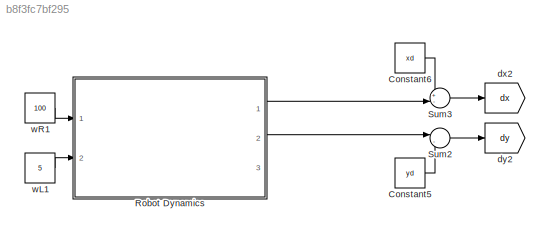
MODEL slx_b8f3fc7bf295
KIND model
CONFIG AbsTol = auto
CONFIG EnableMultiTasking = off
CONFIG FixedStep = auto
CONFIG MaxStep = auto
CONFIG MinStep = auto
CONFIG RelTol = 1e-3
CONFIG SampleTimeConstraint = Unconstrained
CONFIG SolverName = VariableStepAuto
CONFIG StartTime = 0.0
CONFIG StopTime = 100
BLOCK [Constant] Constant5
  Value = yd
BLOCK [Constant] Constant6
  Value = xd
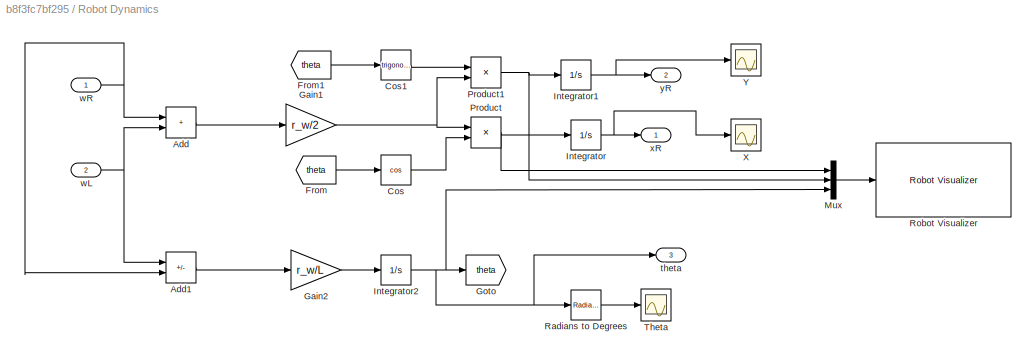
BLOCK [SubSystem] Robot Dynamics
  Ports = [2, 3]
  RequestExecContextInheritance = off
BLOCK [Sum] Robot Dynamics/Add
  IconShape = rectangular
  Ports = [2, 1]
BLOCK [Sum] Robot Dynamics/Add1
  IconShape = rectangular
  Inputs = -+
  Ports = [2, 1]
BLOCK [Trigonometry] Robot Dynamics/Cos
  Operator = cos
  Ports = [1, 1]
BLOCK [Trigonometry] Robot Dynamics/Cos1
  Ports = [1, 1]
BLOCK [From] Robot Dynamics/From
  GotoTag = theta
BLOCK [From] Robot Dynamics/From1
  GotoTag = theta
BLOCK [Gain] Robot Dynamics/Gain1
  Gain = r_w/2
BLOCK [Gain] Robot Dynamics/Gain2
  Gain = r_w/L
BLOCK [Goto] Robot Dynamics/Goto
  GotoTag = theta
BLOCK [Integrator] Robot Dynamics/Integrator
  InitialCondition = x0
  Ports = [1, 1]
BLOCK [Integrator] Robot Dynamics/Integrator1
  InitialCondition = y0
  Ports = [1, 1]
BLOCK [Integrator] Robot Dynamics/Integrator2
  InitialCondition = theta0
  Ports = [1, 1]
BLOCK [Mux] Robot Dynamics/Mux
  DisplayOption = bar
  Inputs = 3
  Ports = [3, 1]
BLOCK [Product] Robot Dynamics/Product
  Ports = [2, 1]
BLOCK [Product] Robot Dynamics/Product1
  Ports = [2, 1]
BLOCK [Reference] Robot Dynamics/Radians to Degrees  REF=simulink_extras/Transformations/Radians
to Degrees
  Ports = [1, 1]
  SourceBlock = simulink_extras/Transformations/Radians\nto Degrees
  SourceProductBaseCode = SL
  SourceType = RadiansToDegrees
BLOCK [Reference] Robot Dynamics/Robot Visualizer  REF=mobileRoboticsLib/Environments/Robot Visualizer
  Ports = [1]
  SourceBlock = mobileRoboticsLib/Environments/Robot Visualizer
  SourceProductName = Mobile Robotics Simulation Toolbox
  SourceType = Visualizer2D
BLOCK [Scope] Robot Dynamics/Theta
  Floating = off
  NumInputPorts = 1
  Ports = [1]
  ScopeSpecificationString = Simulink.scopes.TimeScopeBlockCfg('CurrentConfiguration', extmgr.ConfigurationSet(extmgr.Configuration('Core','General UI',true),extmgr.Configuration('Core','Source UI',true),extmgr.Configuration('Sources','WiredSimulink',true,'DataLoggingVariableName','ScopeData1'),extmgr.Configuration('Visuals','Time Domain',true,'SerializedDisplays',{struct('MinYLimReal','-143.23945','MaxYLimReal','1289.15504',...<+1547ch>
BLOCK [Scope] Robot Dynamics/X
  Floating = off
  NumInputPorts = 1
  Ports = [1]
  ScopeSpecificationString = Simulink.scopes.TimeScopeBlockCfg('CurrentConfiguration', extmgr.ConfigurationSet(extmgr.Configuration('Core','General UI',true),extmgr.Configuration('Core','Source UI',true),extmgr.Configuration('Sources','WiredSimulink',true,'DataLoggingVariableName','ScopeData2'),extmgr.Configuration('Visuals','Time Domain',true,'SerializedDisplays',{struct('MinYLimReal','-3.12449','MaxYLimReal','3.12046','YLab...<+1427ch>
BLOCK [Scope] Robot Dynamics/Y
  Floating = off
  NumInputPorts = 1
  Ports = [1]
  ScopeSpecificationString = Simulink.scopes.TimeScopeBlockCfg('CurrentConfiguration', extmgr.ConfigurationSet(extmgr.Configuration('Core','General UI',true),extmgr.Configuration('Core','Source UI',true),extmgr.Configuration('Sources','WiredSimulink',true),extmgr.Configuration('Visuals','Time Domain',true,'SerializedDisplays',{struct('MinYLimReal','-0.14111','MaxYLimReal','1.24065','YLabelReal','','MinYLimMag','0.00000','MaxY...<+1362ch>
BLOCK [Outport] Robot Dynamics/theta
  Port = 3
BLOCK [Inport] Robot Dynamics/wL
  Port = 2
BLOCK [Inport] Robot Dynamics/wR
BLOCK [Outport] Robot Dynamics/xR
BLOCK [Outport] Robot Dynamics/yR
  Port = 2
BLOCK [Sum] Sum2
  Inputs = |-+
  Ports = [2, 1]
BLOCK [Sum] Sum3
  Inputs = +-|
  Ports = [2, 1]
BLOCK [Goto] dx2
  GotoTag = dx
BLOCK [Goto] dy2
  GotoTag = dy
BLOCK [Constant] wL1
  Value = 5
BLOCK [Constant] wR1
  Value = 100
LINE Constant5:1 -> Sum2:2
LINE Constant6:1 -> Sum3:1
LINE Robot Dynamics/Add1:1 -> Robot Dynamics/Gain2:1
LINE Robot Dynamics/Add:1 -> Robot Dynamics/Gain1:1
LINE Robot Dynamics/Cos1:1 -> Robot Dynamics/Product1:1
LINE Robot Dynamics/Cos:1 -> Robot Dynamics/Product:2
LINE Robot Dynamics/From1:1 -> Robot Dynamics/Cos1:1
LINE Robot Dynamics/From:1 -> Robot Dynamics/Cos:1
NET Robot Dynamics/Gain1:1 -> Robot Dynamics/Product1:2, Robot Dynamics/Product:1
LINE Robot Dynamics/Gain2:1 -> Robot Dynamics/Integrator2:1
NET Robot Dynamics/Integrator1:1 -> Robot Dynamics/Y:1, Robot Dynamics/yR:1
NET Robot Dynamics/Integrator2:1 -> Robot Dynamics/Goto:1, Robot Dynamics/Mux:3, Robot Dynamics/Radians to Degrees:1, Robot Dynamics/theta:1
NET Robot Dynamics/Integrator:1 -> Robot Dynamics/X:1, Robot Dynamics/xR:1
LINE Robot Dynamics/Mux:1 -> Robot Dynamics/Robot Visualizer:1
NET Robot Dynamics/Product1:1 -> Robot Dynamics/Integrator1:1, Robot Dynamics/Mux:2
NET Robot Dynamics/Product:1 -> Robot Dynamics/Integrator:1, Robot Dynamics/Mux:1
LINE Robot Dynamics/Radians to Degrees:1 -> Robot Dynamics/Theta:1
NET Robot Dynamics/wL:1 -> Robot Dynamics/Add1:1, Robot Dynamics/Add:2
NET Robot Dynamics/wR:1 -> Robot Dynamics/Add1:2, Robot Dynamics/Add:1
LINE Robot Dynamics:1 -> Sum3:2
LINE Robot Dynamics:2 -> Sum2:1
LINE Sum2:1 -> dy2:1
LINE Sum3:1 -> dx2:1
LINE wL1:1 -> Robot Dynamics:2
LINE wR1:1 -> Robot Dynamics:1
note: NET lines group one-source signal fan-out (src -> all destinations, sorted); 1:1 wires keep LINE
